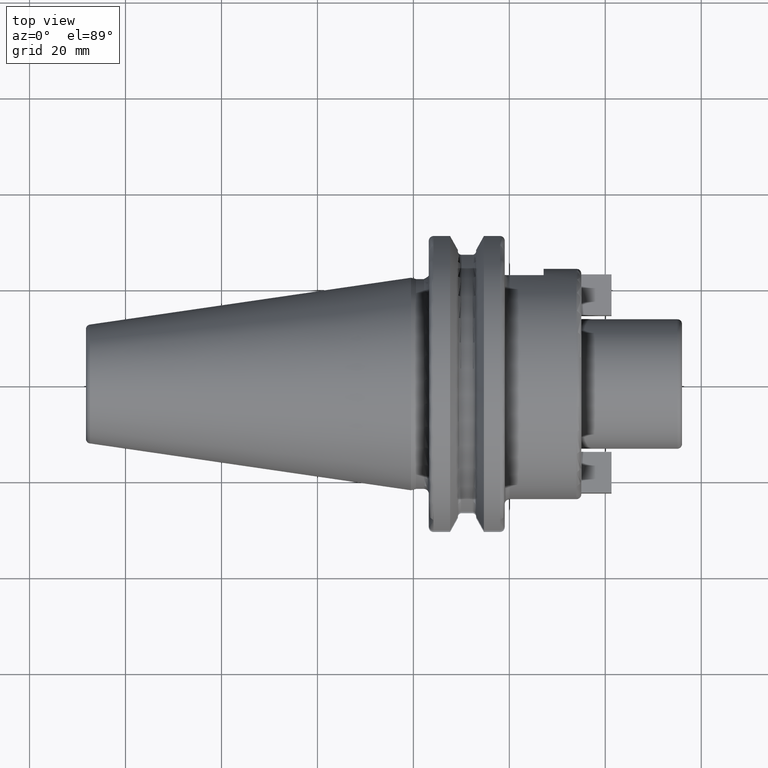
[diagram: clean part render]
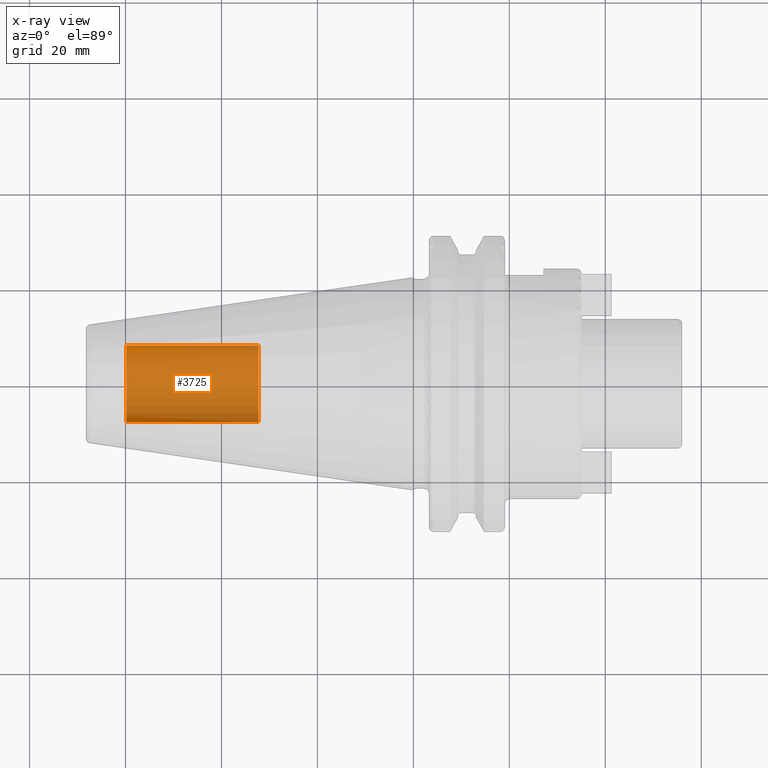
[diagram: x-ray — body ghosted, one internal face saturated and labeled with its STEP entity id]
A machine part, top view, then the same camera in x-ray: the body is ghosted and one INTERNAL B-rep face — a face not visible from any outside direction — is saturated and labeled: STEP entity #3725.
In plain terms, the highlighted cylindrical surface (partial cylindrical patch) has radius 8.0028 mm, axis along (1, 0, 0).
Its self-contained STEP definition (entity closure, byte-faithful):
#3660=CARTESIAN_POINT('',(-5.98E1,0.E0,0.E0));
#3661=DIRECTION('',(-1.E0,0.E0,0.E0));
#3662=DIRECTION('',(0.E0,1.E0,0.E0));
#3663=AXIS2_PLACEMENT_3D('',#3660,#3661,#3662);
#3665=DIRECTION('',(1.E0,0.E0,0.E0));
#3666=VECTOR('',#3665,2.755E1);
#3667=CARTESIAN_POINT('',(-5.98E1,-8.00275E0,0.E0));
#3668=LINE('',#3667,#3666);
#3674=DIRECTION('',(1.E0,0.E0,0.E0));
#3675=VECTOR('',#3674,2.755E1);
#3676=CARTESIAN_POINT('',(-5.98E1,8.00275E0,0.E0));
#3677=LINE('',#3676,#3675);
#3683=CARTESIAN_POINT('',(-3.225E1,0.E0,0.E0));
#3684=DIRECTION('',(1.E0,0.E0,0.E0));
#3685=DIRECTION('',(0.E0,-1.E0,0.E0));
#3686=AXIS2_PLACEMENT_3D('',#3683,#3684,#3685);
#3698=CARTESIAN_POINT('',(-5.98E1,8.00275E0,0.E0));
#3699=CARTESIAN_POINT('',(-5.98E1,-8.00275E0,0.E0));
#3700=VERTEX_POINT('',#3698);
#3701=VERTEX_POINT('',#3699);
#3702=CARTESIAN_POINT('',(-3.225E1,8.00275E0,0.E0));
#3703=CARTESIAN_POINT('',(-3.225E1,-8.00275E0,0.E0));
#3704=VERTEX_POINT('',#3702);
#3705=VERTEX_POINT('',#3703);
#3710=CARTESIAN_POINT('',(-5.98E1,0.E0,0.E0));
#3711=DIRECTION('',(1.E0,0.E0,0.E0));
#3712=DIRECTION('',(0.E0,1.E0,0.E0));
#3713=AXIS2_PLACEMENT_3D('',#3710,#3711,#3712);
#3714=CYLINDRICAL_SURFACE('',#3713,8.00275E0);
#3716=ORIENTED_EDGE('',*,*,#3715,.T.);
#3718=ORIENTED_EDGE('',*,*,#3717,.T.);
#3720=ORIENTED_EDGE('',*,*,#3719,.T.);
#3722=ORIENTED_EDGE('',*,*,#3721,.F.);
#3723=EDGE_LOOP('',(#3716,#3718,#3720,#3722));
#3724=FACE_OUTER_BOUND('',#3723,.F.);
#3725=ADVANCED_FACE('',(#3724),#3714,.T.);
#3664=CIRCLE('',#3663,8.00275E0);
#3687=CIRCLE('',#3686,8.00275E0);
#3715=EDGE_CURVE('',#3700,#3701,#3664,.T.);
#3717=EDGE_CURVE('',#3701,#3705,#3668,.T.);
#3719=EDGE_CURVE('',#3705,#3704,#3687,.T.);
#3721=EDGE_CURVE('',#3700,#3704,#3677,.T.);